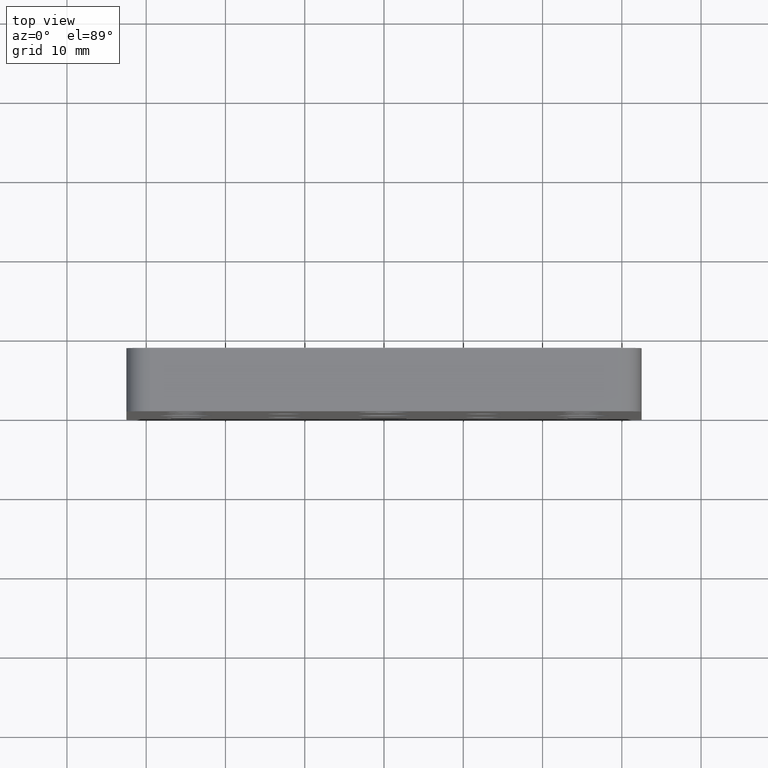
[diagram: clean part render]
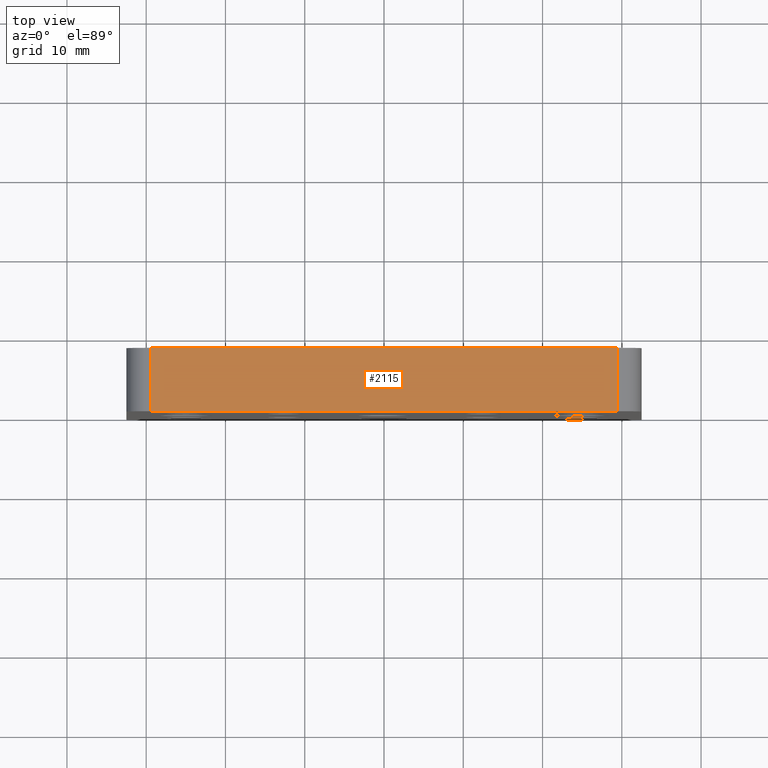
[diagram: same view with one face highlighted and labeled with its STEP entity id]
A machine part, top view. The second image highlights one B-rep face of the part: STEP entity #2115.
In plain terms, the highlighted planar face has unit normal (0, 0, -1).
Its self-contained STEP definition (entity closure, byte-faithful):
#5 = CARTESIAN_POINT ( 'NONE',  ( -29.49999999999999600, 0.0000000000000000000, 32.50000000000000000 ) ) ;
#286 = CARTESIAN_POINT ( 'NONE',  ( 29.50000000000000700, 8.000000000000000000, 32.50000000000000000 ) ) ;
#327 = DIRECTION ( 'NONE',  ( 0.0000000000000000000, 0.0000000000000000000, -1.000000000000000000 ) ) ;
#435 = CARTESIAN_POINT ( 'NONE',  ( 29.50000000000000700, 0.0000000000000000000, 32.50000000000000000 ) ) ;
#452 = ORIENTED_EDGE ( 'NONE', *, *, #729, .T. ) ;
#490 = LINE ( 'NONE', #739, #1202 ) ;
#509 = ORIENTED_EDGE ( 'NONE', *, *, #1086, .T. ) ;
#544 = DIRECTION ( 'NONE',  ( 1.000000000000000000, 0.0000000000000000000, 0.0000000000000000000 ) ) ;
#586 = VERTEX_POINT ( 'NONE', #5 ) ;
#630 = VECTOR ( 'NONE', #1344, 1000.000000000000000 ) ;
#677 = FACE_OUTER_BOUND ( 'NONE', #2131, .T. ) ;
#686 = LINE ( 'NONE', #1176, #630 ) ;
#693 = VERTEX_POINT ( 'NONE', #1319 ) ;
#729 = EDGE_CURVE ( 'NONE', #1244, #1785, #686, .T. ) ;
#739 = CARTESIAN_POINT ( 'NONE',  ( -32.49999999999999300, 0.0000000000000000000, 32.50000000000000000 ) ) ;
#828 = EDGE_CURVE ( 'NONE', #693, #1785, #2272, .T. ) ;
#829 = CARTESIAN_POINT ( 'NONE',  ( -29.49999999999999600, 8.000000000000000000, 32.50000000000000000 ) ) ;
#865 = PLANE ( 'NONE',  #2241 ) ;
#930 = EDGE_CURVE ( 'NONE', #693, #586, #1665, .T. ) ;
#1080 = CARTESIAN_POINT ( 'NONE',  ( -32.49999999999999300, 8.000000000000000000, 32.50000000000000000 ) ) ;
#1086 = EDGE_CURVE ( 'NONE', #586, #1244, #490, .T. ) ;
#1176 = CARTESIAN_POINT ( 'NONE',  ( 29.50000000000000700, 8.000000000000000000, 32.50000000000000000 ) ) ;
#1178 = VECTOR ( 'NONE', #1939, 1000.000000000000000 ) ;
#1202 = VECTOR ( 'NONE', #544, 1000.000000000000000 ) ;
#1244 = VERTEX_POINT ( 'NONE', #435 ) ;
#1249 = ORIENTED_EDGE ( 'NONE', *, *, #930, .T. ) ;
#1319 = CARTESIAN_POINT ( 'NONE',  ( -29.49999999999999600, 8.000000000000000000, 32.50000000000000000 ) ) ;
#1344 = DIRECTION ( 'NONE',  ( -0.0000000000000000000, 1.000000000000000000, -0.0000000000000000000 ) ) ;
#1350 = CARTESIAN_POINT ( 'NONE',  ( -32.49999999999999300, 8.000000000000000000, 32.50000000000000000 ) ) ;
#1665 = LINE ( 'NONE', #829, #1178 ) ;
#1692 = VECTOR ( 'NONE', #2068, 1000.000000000000000 ) ;
#1785 = VERTEX_POINT ( 'NONE', #286 ) ;
#1939 = DIRECTION ( 'NONE',  ( 0.0000000000000000000, -1.000000000000000000, 0.0000000000000000000 ) ) ;
#2068 = DIRECTION ( 'NONE',  ( 1.000000000000000000, 0.0000000000000000000, 0.0000000000000000000 ) ) ;
#2115 = ADVANCED_FACE ( 'NONE', ( #677 ), #865, .F. ) ;
#2131 = EDGE_LOOP ( 'NONE', ( #2167, #1249, #509, #452 ) ) ;
#2141 = DIRECTION ( 'NONE',  ( -1.000000000000000000, 0.0000000000000000000, -0.0000000000000000000 ) ) ;
#2167 = ORIENTED_EDGE ( 'NONE', *, *, #828, .F. ) ;
#2241 = AXIS2_PLACEMENT_3D ( 'NONE', #1080, #327, #2141 ) ;
#2272 = LINE ( 'NONE', #1350, #1692 ) ;